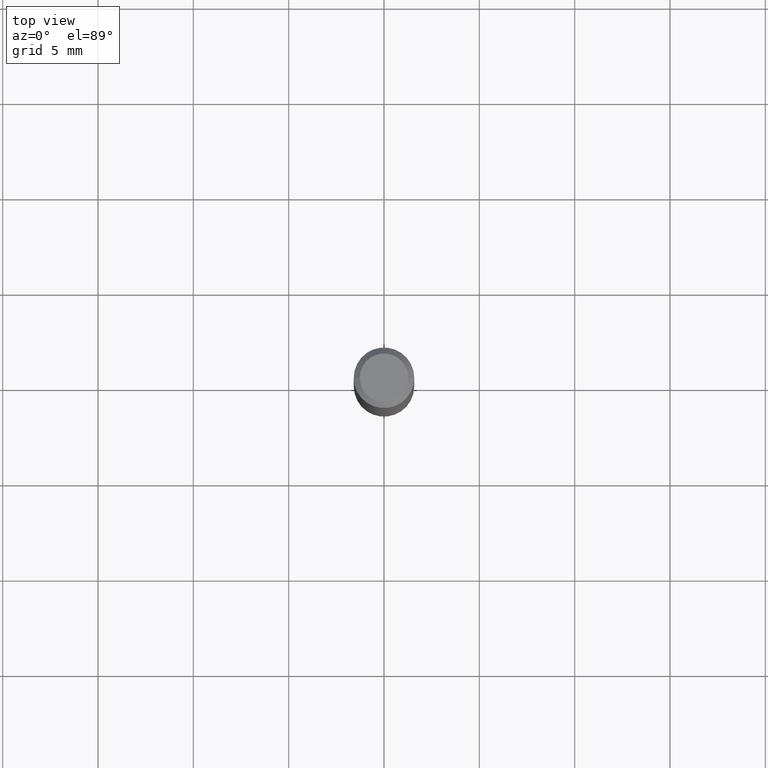
[diagram: clean part render]
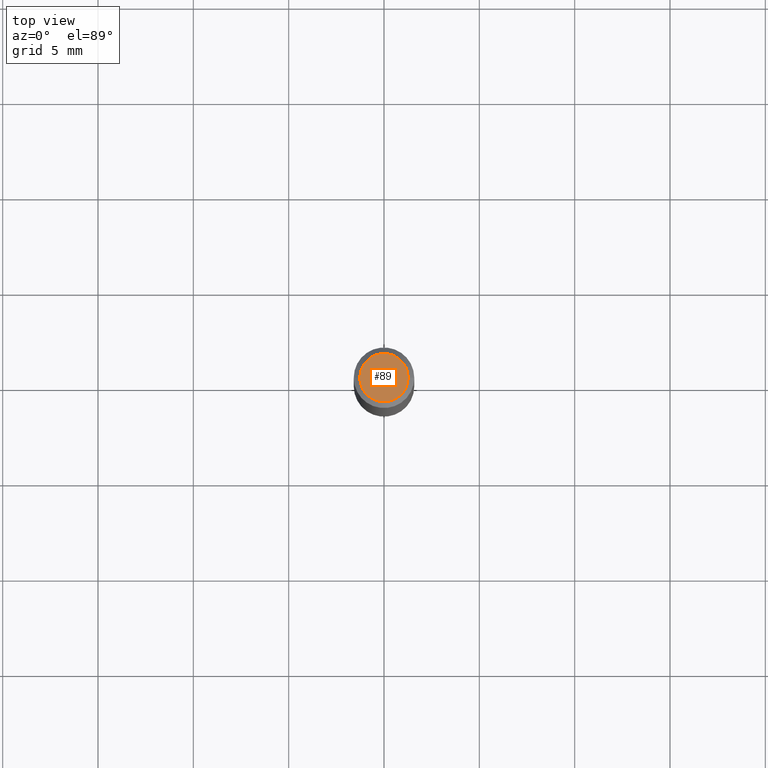
[diagram: same view with one face highlighted and labeled with its STEP entity id]
A machine part, top view. The second image highlights one B-rep face of the part: STEP entity #89.
In plain terms, the highlighted planar face has unit normal (0, -0, -1).
Its self-contained STEP definition (entity closure, byte-faithful):
#11 = VERTEX_POINT ( 'NONE', #244 ) ;
#18 = ORIENTED_EDGE ( 'NONE', *, *, #390, .T. ) ;
#35 = PLANE ( 'NONE',  #347 ) ;
#45 = CARTESIAN_POINT ( 'NONE',  ( 3.893286209682126177E-47, -5.558580879666067980E-33, -1.592040838891559689E-18 ) ) ;
#87 = AXIS2_PLACEMENT_3D ( 'NONE', #485, #329, #132 ) ;
#89 = ADVANCED_FACE ( 'NONE', ( #145 ), #35, .F. ) ;
#132 = DIRECTION ( 'NONE',  ( 1.000000000000000000, -6.982962677686265922E-15, 4.875957971899673662E-29 ) ) ;
#133 = VERTEX_POINT ( 'NONE', #300 ) ;
#139 = ORIENTED_EDGE ( 'NONE', *, *, #372, .T. ) ;
#145 = FACE_OUTER_BOUND ( 'NONE', #202, .T. ) ;
#184 = DIRECTION ( 'NONE',  ( -1.000000000000000000, 6.982962677686265922E-15, -4.876176775795935793E-29 ) ) ;
#202 = EDGE_LOOP ( 'NONE', ( #18, #139 ) ) ;
#224 = CARTESIAN_POINT ( 'NONE',  ( 1.946643104841063088E-47, -2.779290439833033990E-33, -7.960204194457798443E-19 ) ) ;
#232 = DIRECTION ( 'NONE',  ( 2.438088387897960049E-29, -3.491481338843145188E-15, -1.000000000000000000 ) ) ;
#236 = CIRCLE ( 'NONE', #87, 0.04999999999999999584 ) ;
#244 = CARTESIAN_POINT ( 'NONE',  ( -0.04999999999999999584, 3.709698922520826725E-16, -1.592040838894077649E-18 ) ) ;
#270 = CIRCLE ( 'NONE', #281, 0.04999999999999999584 ) ;
#272 = DIRECTION ( 'NONE',  ( 1.000000000000000000, -6.982962677686265922E-15, 4.875957971899673662E-29 ) ) ;
#281 = AXIS2_PLACEMENT_3D ( 'NONE', #45, #461, #272 ) ;
#300 = CARTESIAN_POINT ( 'NONE',  ( 0.04999999999999999584, -4.077247707424184705E-16, -1.592040838888913461E-18 ) ) ;
#329 = DIRECTION ( 'NONE',  ( -2.445468806185136597E-29, 3.491481338843145583E-15, 1.000000000000000000 ) ) ;
#347 = AXIS2_PLACEMENT_3D ( 'NONE', #224, #232, #184 ) ;
#372 = EDGE_CURVE ( 'NONE', #133, #11, #270, .T. ) ;
#390 = EDGE_CURVE ( 'NONE', #11, #133, #236, .T. ) ;
#461 = DIRECTION ( 'NONE',  ( -2.445468806185136597E-29, 3.491481338843145583E-15, 1.000000000000000000 ) ) ;
#485 = CARTESIAN_POINT ( 'NONE',  ( 3.893286209682126177E-47, -5.558580879666067980E-33, -1.592040838891559689E-18 ) ) ;